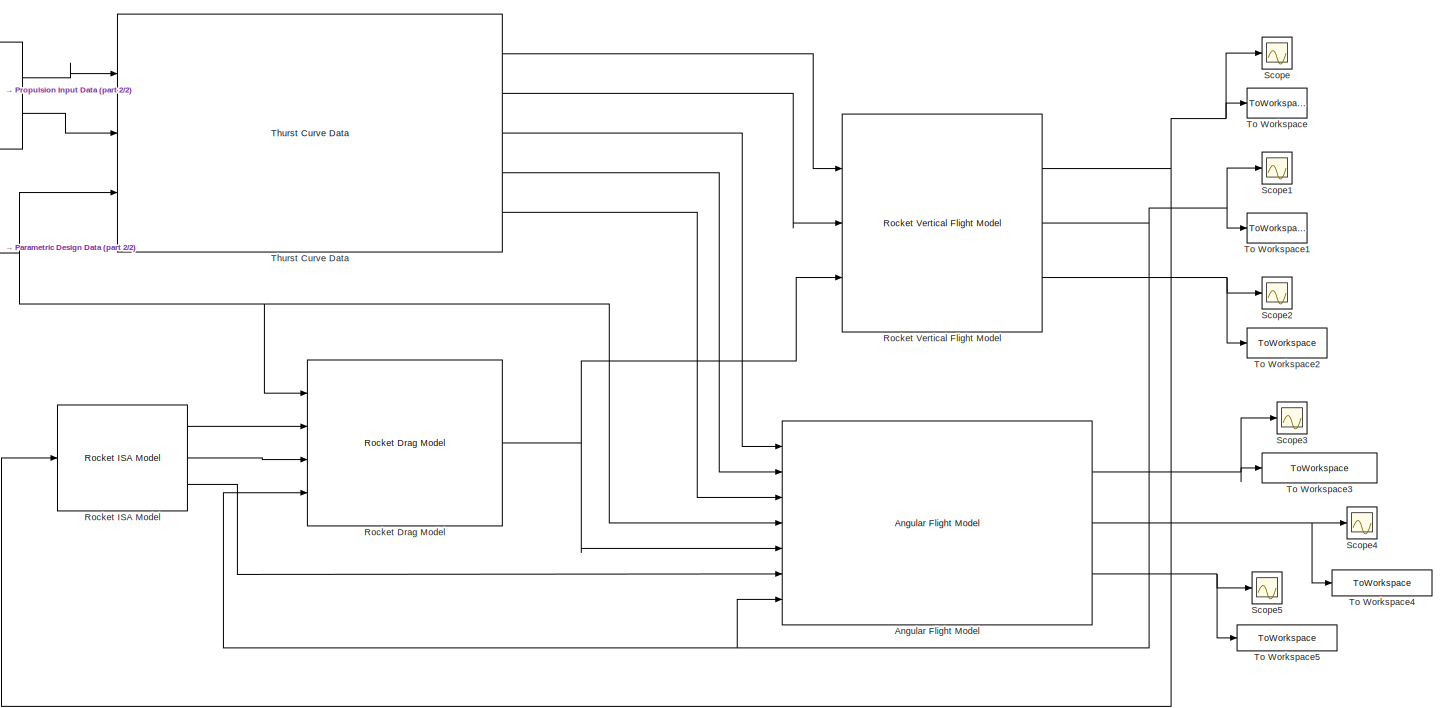
[diagram: root canvas - part 1/2, most of the canvas]
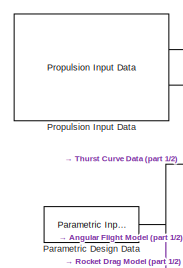
[diagram: root canvas - part 2/2, top left region]
MODEL slx_e187d0e4d6cf
KIND model
BLOCK [Reference] Angular Flight Model  REF=rocket_angular_flight_library/Angular Flight Model
  Ports = [7, 3]
  SourceBlock = rocket_angular_flight_library/Angular Flight Model
  SourceType = SubSystem
BLOCK [Reference] Parametric Design Data  REF=rocket_data_library/Parametric Input Data  (lib defined in slx_8538da7d43bf)
  Ports = [0, 1]
  SourceBlock = rocket_data_library/Parametric Input Data
  SourceType = SubSystem
BLOCK [Reference] Propulsion Input Data  REF=rocket_thrust_data_library/Propulsion Input Data
  Ports = [0, 2]
  SourceBlock = rocket_thrust_data_library/Propulsion Input Data
  SourceType = SubSystem
BLOCK [Reference] Rocket Drag Model  REF=rocket_drag_library/Rocket Drag Model  (lib defined in slx_51275aa4cfd2)
  Ports = [4, 1]
  SourceBlock = rocket_drag_library/Rocket Drag Model
  SourceType = SubSystem
BLOCK [Reference] Rocket ISA Model  REF=rocket_isa_model_library/Rocket ISA Model  (lib defined in slx_4b2a796e4351)
  Ports = [1, 3]
  SourceBlock = rocket_isa_model_library/Rocket ISA Model
  SourceType = SubSystem
BLOCK [Reference] Rocket Vertical Flight Model  REF=rocket_vertical_flight_library/Rocket Vertical Flight Model  (lib defined in slx_f0a917acac91)
  Ports = [3, 3]
  SourceBlock = rocket_vertical_flight_library/Rocket Vertical Flight Model
  SourceType = SubSystem
BLOCK [Scope] Scope
  DataFormat = StructureWithTime
  Floating = off
  NumInputPorts = 1
  Ports = [1]
  SampleTime = 0
  ShowLegends = off
BLOCK [Scope] Scope1
  DataFormat = StructureWithTime
  Floating = off
  NumInputPorts = 1
  Ports = [1]
  SampleTime = 0
  SaveName = ScopeData1
  ShowLegends = off
BLOCK [Scope] Scope2
  DataFormat = StructureWithTime
  Floating = off
  NumInputPorts = 1
  Ports = [1]
  SampleTime = 0
  SaveName = ScopeData2
  ShowLegends = off
BLOCK [Scope] Scope3
  DataFormat = StructureWithTime
  Floating = off
  NumInputPorts = 1
  Ports = [1]
  SampleTime = 0
  SaveName = ScopeData3
  ShowLegends = off
BLOCK [Scope] Scope4
  DataFormat = StructureWithTime
  Floating = off
  NumInputPorts = 1
  Ports = [1]
  SampleTime = 0
  SaveName = ScopeData4
  ShowLegends = off
BLOCK [Scope] Scope5
  DataFormat = StructureWithTime
  Floating = off
  NumInputPorts = 1
  Ports = [1]
  SampleTime = 0
  SaveName = ScopeData5
  ShowLegends = off
BLOCK [Reference] Thurst Curve Data  REF=rocket_dynamic_data_library/Thurst Curve Data  (lib defined in slx_58be5b8ac4f4)
  Ports = [3, 5]
  SourceBlock = rocket_dynamic_data_library/Thurst Curve Data
  SourceType = SubSystem
BLOCK [ToWorkspace] To Workspace
  FixptAsFi = on
  MaxDataPoints = inf
  Ports = [1]
  SampleTime = -1
  Save2DSignal = 3-D array (concatenate along third dimension)
  SaveFormat = Timeseries
  VariableName = altitude
BLOCK [ToWorkspace] To Workspace1
  FixptAsFi = on
  MaxDataPoints = inf
  Ports = [1]
  SampleTime = -1
  Save2DSignal = 3-D array (concatenate along third dimension)
  SaveFormat = Timeseries
  VariableName = velocity
BLOCK [ToWorkspace] To Workspace2
  FixptAsFi = on
  MaxDataPoints = inf
  Ports = [1]
  SampleTime = -1
  Save2DSignal = 3-D array (concatenate along third dimension)
  SaveFormat = Timeseries
  VariableName = acceleration
BLOCK [ToWorkspace] To Workspace3
  FixptAsFi = on
  MaxDataPoints = inf
  Ports = [1]
  SampleTime = -1
  Save2DSignal = 3-D array (concatenate along third dimension)
  SaveFormat = Timeseries
  VariableName = angular_acceleration
BLOCK [ToWorkspace] To Workspace4
  FixptAsFi = on
  MaxDataPoints = inf
  Ports = [1]
  SampleTime = -1
  Save2DSignal = 3-D array (concatenate along third dimension)
  SaveFormat = Timeseries
  VariableName = angular_velocity
BLOCK [ToWorkspace] To Workspace5
  FixptAsFi = on
  MaxDataPoints = inf
  Ports = [1]
  SampleTime = -1
  Save2DSignal = 3-D array (concatenate along third dimension)
  SaveFormat = Timeseries
  VariableName = angular_orientation
NET Angular Flight Model:1 -> Scope3:1, To Workspace3:1
NET Angular Flight Model:2 -> Scope4:1, To Workspace4:1
NET Angular Flight Model:3 -> Scope5:1, To Workspace5:1
NET Parametric Design Data:1 -> Angular Flight Model:4, Rocket Drag Model:1, Thurst Curve Data:3
LINE Propulsion Input Data:1 -> Thurst Curve Data:1
LINE Propulsion Input Data:2 -> Thurst Curve Data:2
NET Rocket Drag Model:1 -> Angular Flight Model:5, Rocket Vertical Flight Model:3
LINE Rocket ISA Model:1 -> Rocket Drag Model:2
LINE Rocket ISA Model:2 -> Rocket Drag Model:3
LINE Rocket ISA Model:3 -> Angular Flight Model:6
NET Rocket Vertical Flight Model:1 -> Rocket ISA Model:1, Scope:1, To Workspace:1
NET Rocket Vertical Flight Model:2 -> Angular Flight Model:7, Rocket Drag Model:4, Scope1:1, To Workspace1:1
NET Rocket Vertical Flight Model:3 -> Scope2:1, To Workspace2:1
LINE Thurst Curve Data:1 -> Rocket Vertical Flight Model:1
LINE Thurst Curve Data:2 -> Rocket Vertical Flight Model:2
LINE Thurst Curve Data:3 -> Angular Flight Model:1
LINE Thurst Curve Data:4 -> Angular Flight Model:2
LINE Thurst Curve Data:5 -> Angular Flight Model:3
note: NET lines group one-source signal fan-out (src -> all destinations, sorted); 1:1 wires keep LINE
